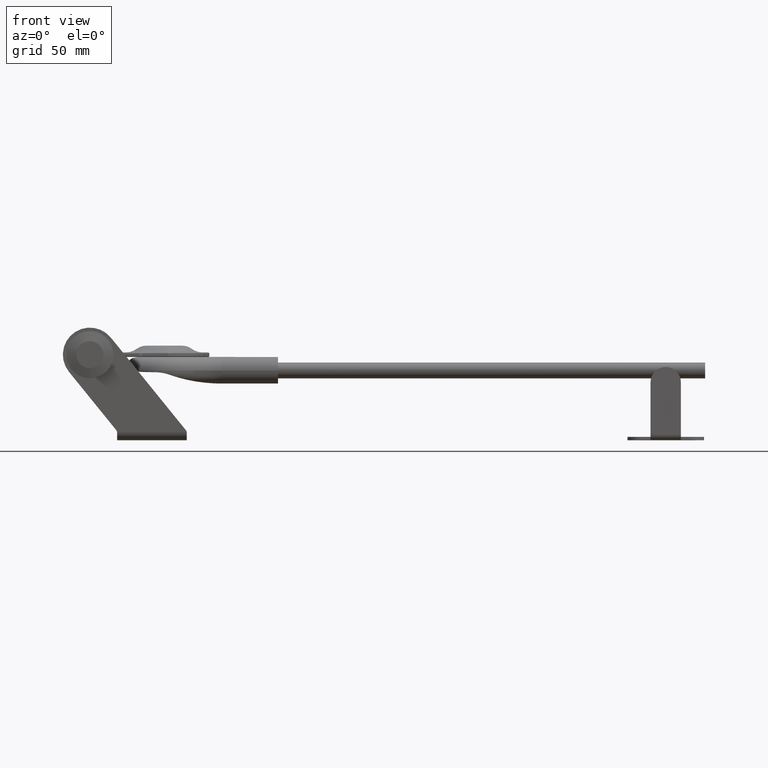
[diagram: clean part render]
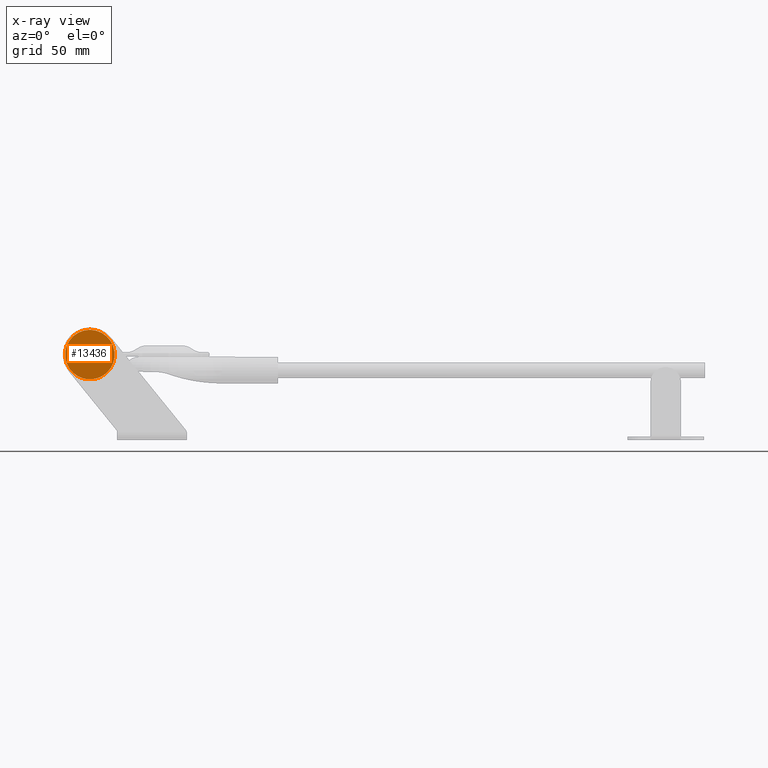
[diagram: x-ray — body ghosted, one internal face saturated and labeled with its STEP entity id]
A machine part, front view, then the same camera in x-ray: the body is ghosted and one INTERNAL B-rep face — a face not visible from any outside direction — is saturated and labeled: STEP entity #13436.
In plain terms, the highlighted planar face has unit normal (0, -1, 0).
Its self-contained STEP definition (entity closure, byte-faithful):
#475 = EDGE_LOOP ( 'NONE', ( #22514 ) ) ;
#1009 = DIRECTION ( 'NONE',  ( -0.000000000000000000, 1.000000000000000000, -0.000000000000000000 ) ) ;
#1101 = CARTESIAN_POINT ( 'NONE',  ( 1.734723475976807094E-15, 4.999999999999997335, 0.000000000000000000 ) ) ;
#1410 = VERTEX_POINT ( 'NONE', #10317 ) ;
#2325 = DIRECTION ( 'NONE',  ( 0.000000000000000000, -0.000000000000000000, -1.000000000000000000 ) ) ;
#7425 = AXIS2_PLACEMENT_3D ( 'NONE', #11503, #16832, #2325 ) ;
#8012 = DIRECTION ( 'NONE',  ( 0.000000000000000000, 0.000000000000000000, 1.000000000000000000 ) ) ;
#8168 = FACE_OUTER_BOUND ( 'NONE', #475, .T. ) ;
#8719 = AXIS2_PLACEMENT_3D ( 'NONE', #1101, #1009, #8012 ) ;
#10317 = CARTESIAN_POINT ( 'NONE',  ( 1.734723475976807094E-15, 4.999999999999997335, 11.00000000000000000 ) ) ;
#11503 = CARTESIAN_POINT ( 'NONE',  ( 11.00000000000000178, 4.999999999999997335, 0.000000000000000000 ) ) ;
#12537 = CIRCLE ( 'NONE', #8719, 11.00000000000000000 ) ;
#13152 = PLANE ( 'NONE',  #7425 ) ;
#13436 = ADVANCED_FACE ( 'NONE', ( #8168 ), #13152, .F. ) ;
#16832 = DIRECTION ( 'NONE',  ( 0.000000000000000000, -1.000000000000000000, 0.000000000000000000 ) ) ;
#17815 = EDGE_CURVE ( 'NONE', #1410, #1410, #12537, .T. ) ;
#22514 = ORIENTED_EDGE ( 'NONE', *, *, #17815, .T. ) ;